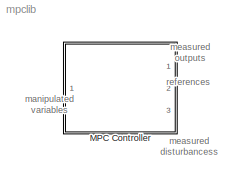
MODEL mpclib
KIND library
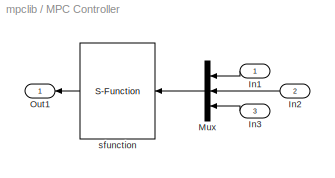
BLOCK [SubSystem] MPC Controller
  DeleteFcn = mpc_deletetask
  InitFcn = mpc_init
  LoadFcn = mpc_block_resize
  MaskCallbackString = |||||||||||||
  MaskDisplay = fprintf('MPC');\nport_label('output', 1, 'mv')\nport_label('input', 1, 'mo')\nport_label('input', 2, 'ref')\nport_label('input', 3, 'md')\nport_label('input', 3, 'md')\nport_label('input', 3, 'md')\nport_label('input', 3, 'md')\nport_label('input', 3, 'md')\nport_label('input', 3, 'md')\nport_label('input', 3, 'md')\nport_label('input', 3, 'md')\nport_label('input', 3, 'md')
  MaskEnableString = on,on,on,on,on,on,on,on,on,on,on,on,on,on
  MaskIconFrame = on
  MaskIconOpaque = on
  MaskIconRotate = none
  MaskIconUnits = autoscale
  MaskInitialization = [ts,A,Cm,Dvm,Bu,Bv,PTYPE,nu,nv,nym,ny,nx,degrees,L,MuKduINV,KduINV,Kx,Ku1,Kut,Kr,Kv,zmin,rhsc0,Mlim,Mx,Mu1,Mv,rhsa0,TAB,optimalseq,utarget,lastx,lastu,p,Jm,DUFree,uoff,yoff,voff,myoff,no_md,no_ref,ref_from_ws,ref_signal,ref_preview,md_from_ws,md_signal,md_preview,maxiter,nxQP,openloopflag,md_inport,no_ym] = mpc_get_param_sim;\nmpc_block_resize(gcb);
  MaskPromptString = MPC Object|Starting Number of MVs|Initial Extended State|Reference from Workspace|Reference|Reference Preview|Measured Disturbance from workspace|Measured Disturbance|Measured Disturbance Preview|Controller From Project|MD Signal|Project File|Project Name|Task Name
  MaskSelfModifiable = on
  MaskStyleString = edit,edit,edit,checkbox,edit,checkbox,checkbox,edit,checkbox,checkbox,checkbox,edit,edit,edit
  MaskTabNameString = ,,,,,,,,,,,,,
  MaskToolTipString = on,on,on,on,on,on,on,on,on,on,on,on,on,on
  MaskTunableValueString = on,on,on,on,on,on,on,on,on,on,on,on,on,on
  MaskType = MPC
  MaskValueString = |0|[]|off|[]|on|off|[]|on|off|on|MPCtask.mat||
  MaskVarAliasString = ,,,,,,,,,,,,,
  MaskVariables = mpcobj=&1;n_mv=&2;x0=&3;ref_from_ws=@4;ref_signal_name=&5;ref_preview=@6;md_from_ws=@7;md_signal_name=&8;md_preview=@9;from_project=@10;md_inport=@11;project_file=&12;project_name=&13;task_name=&14;
  MaskVisibilityString = on,on,on,on,on,on,on,on,on,on,on,on,off,off
  MinAlgLoopOccurrences = off
  OpenFcn = mpc_mask
  Ports = [3, 1]
  PropExecContextAcrossSSBoundary = on
  RTWSystemCode = Auto
  StartFcn = mpc_chkdimensions_sim
  TreatAsAtomicUnit = off
BLOCK [Inport] MPC Controller/In1
  IconDisplay = Port number
  LatchInput = off
BLOCK [Inport] MPC Controller/In2
  IconDisplay = Port number
  LatchInput = off
  Port = 2
BLOCK [Inport] MPC Controller/In3
  IconDisplay = Port number
  LatchInput = off
  Port = 3
BLOCK [Mux] MPC Controller/Mux
  DisplayOption = bar
  Inputs = 3
  Ports = [3, 1]
BLOCK [Outport] MPC Controller/Out1
  BusOutputAsStruct = off
  IconDisplay = Port number
BLOCK [S-Function] MPC Controller/sfunction
  FunctionName = mpc_sfun
  Parameters = ts,A,Cm,Dvm,Bu,Bv,PTYPE,nu,nv,nym,ny,nx,degrees,L,MuKduINV,KduINV,Kx,Ku1,Kut,Kr,Kv,zmin,rhsc0,Mlim,Mx,Mu1,Mv,rhsa0,TAB,optimalseq,utarget,lastx,lastu,p,Jm,DUFree,uoff,yoff,voff,myoff,no_md,no_ref,ref_from_ws,ref_signal,ref_preview,md_from_ws,md_signal,md_preview,maxiter,nxQP,openloopflag,md_inport,no_ym
  Ports = [1, 1]
ANNOTATION (root): manipulated\nvariables
ANNOTATION (root): measured\ndisturbancess
ANNOTATION (root): measured\noutputs
ANNOTATION (root): references
LINE MPC Controller/In1:1 -> MPC Controller/Mux:1
LINE MPC Controller/In2:1 -> MPC Controller/Mux:2
LINE MPC Controller/In3:1 -> MPC Controller/Mux:3
LINE MPC Controller/Mux:1 -> MPC Controller/sfunction:1
LINE MPC Controller/sfunction:1 -> MPC Controller/Out1:1
